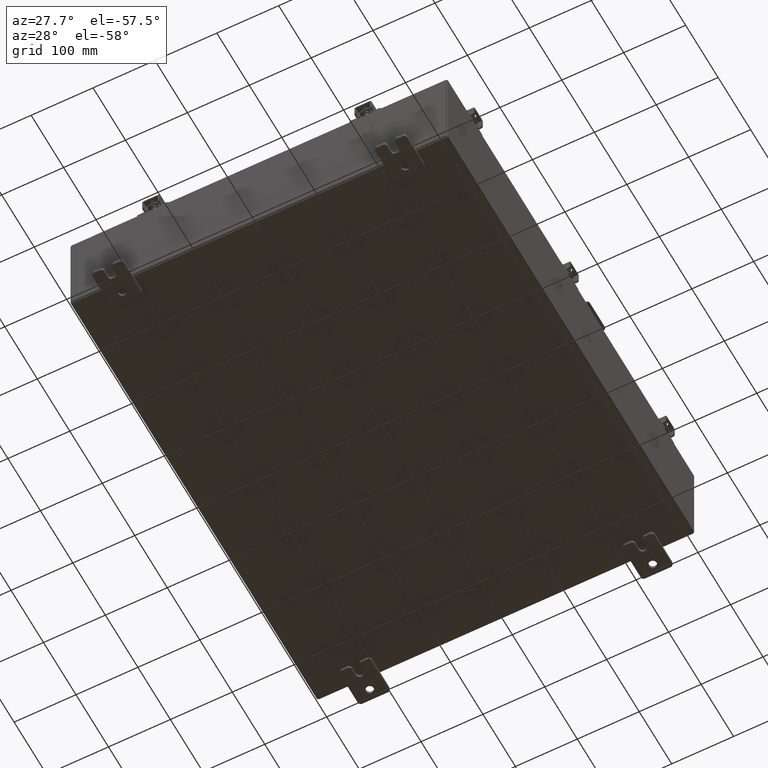
[diagram: clean part render]
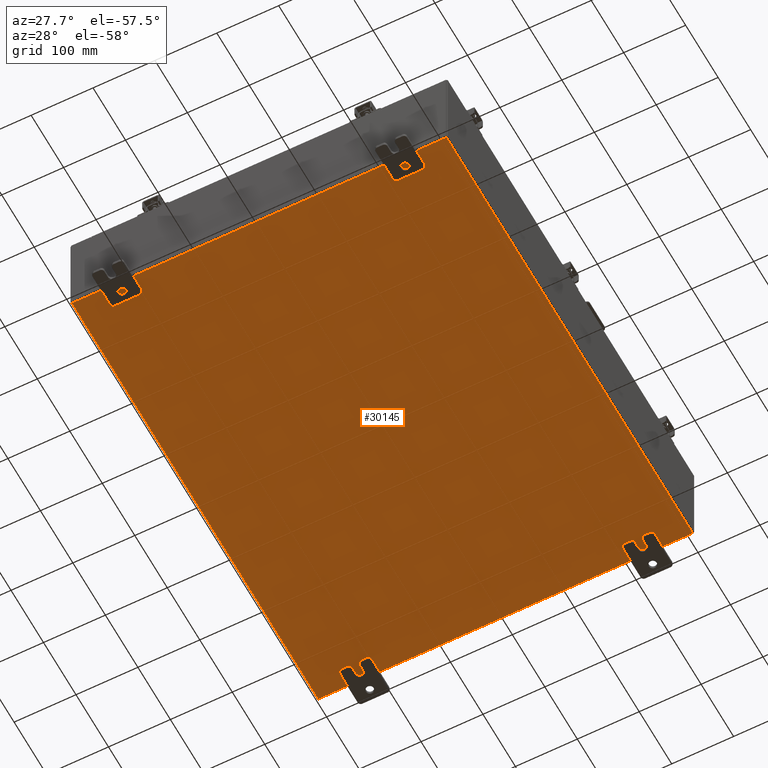
[diagram: same view with one face highlighted and labeled with its STEP entity id]
A machine part, auxiliary view. The second image highlights one B-rep face of the part: STEP entity #30145.
In plain terms, the highlighted planar face has unit normal (0, 0, -1).
Its self-contained STEP definition (entity closure, byte-faithful):
#1163 = CARTESIAN_POINT ( 'NONE',  ( 11.91229999999999700, 14.92530000000000000, -0.07470000000000226500 ) ) ;
#1640 = AXIS2_PLACEMENT_3D ( 'NONE', #20698, #37388, #21628 ) ;
#1777 = DIRECTION ( 'NONE',  ( 1.000000000000000000, 0.0000000000000000000, 0.0000000000000000000 ) ) ;
#6337 = LINE ( 'NONE', #32263, #6439 ) ;
#6439 = VECTOR ( 'NONE', #33549, 39.37007874015748100 ) ;
#6666 = VECTOR ( 'NONE', #8072, 39.37007874015748100 ) ;
#8072 = DIRECTION ( 'NONE',  ( -0.0000000000000000000, -1.000000000000000000, 8.208677865577646300E-017 ) ) ;
#8731 = LINE ( 'NONE', #9877, #12165 ) ;
#9877 = CARTESIAN_POINT ( 'NONE',  ( -12.00000000000000500, 14.92530000000000000, -0.07470000000000000300 ) ) ;
#12165 = VECTOR ( 'NONE', #27285, 39.37007874015748100 ) ;
#12411 = ORIENTED_EDGE ( 'NONE', *, *, #18287, .F. ) ;
#18287 = EDGE_CURVE ( 'NONE', #27255, #30585, #8731, .T. ) ;
#19134 = CARTESIAN_POINT ( 'NONE',  ( 11.91229999999998800, -14.92530000000000000, -0.07470000000000000300 ) ) ;
#19244 = ORIENTED_EDGE ( 'NONE', *, *, #20517, .T. ) ;
#20517 = EDGE_CURVE ( 'NONE', #30253, #30585, #6337, .T. ) ;
#20698 = CARTESIAN_POINT ( 'NONE',  ( 0.0000000000000000000, 0.0000000000000000000, -0.07470000000000000300 ) ) ;
#21628 = DIRECTION ( 'NONE',  ( -1.000000000000000000, 0.0000000000000000000, -0.0000000000000000000 ) ) ;
#22928 = ORIENTED_EDGE ( 'NONE', *, *, #33484, .F. ) ;
#23769 = PLANE ( 'NONE',  #1640 ) ;
#23955 = CARTESIAN_POINT ( 'NONE',  ( -11.91230000000000500, 14.92530000000000000, -0.07470000000000000300 ) ) ;
#25799 = FACE_OUTER_BOUND ( 'NONE', #30304, .T. ) ;
#27255 = VERTEX_POINT ( 'NONE', #1163 ) ;
#27285 = DIRECTION ( 'NONE',  ( -1.000000000000000000, -0.0000000000000000000, -0.0000000000000000000 ) ) ;
#28196 = VECTOR ( 'NONE', #1777, 39.37007874015748100 ) ;
#28284 = VERTEX_POINT ( 'NONE', #19134 ) ;
#29890 = LINE ( 'NONE', #34386, #6666 ) ;
#30145 = ADVANCED_FACE ( 'NONE', ( #25799 ), #23769, .T. ) ;
#30253 = VERTEX_POINT ( 'NONE', #36659 ) ;
#30270 = ORIENTED_EDGE ( 'NONE', *, *, #35042, .T. ) ;
#30304 = EDGE_LOOP ( 'NONE', ( #22928, #19244, #12411, #30270 ) ) ;
#30585 = VERTEX_POINT ( 'NONE', #23955 ) ;
#30885 = CARTESIAN_POINT ( 'NONE',  ( -12.00000000000000500, -14.92530000000000000, -0.07470000000000000300 ) ) ;
#32263 = CARTESIAN_POINT ( 'NONE',  ( -11.91230000000000500, -14.92530000000000000, -0.07469999999999994700 ) ) ;
#33484 = EDGE_CURVE ( 'NONE', #30253, #28284, #36003, .T. ) ;
#33549 = DIRECTION ( 'NONE',  ( -0.0000000000000000000, 1.000000000000000000, -0.0000000000000000000 ) ) ;
#34386 = CARTESIAN_POINT ( 'NONE',  ( 11.91229999999999700, 14.92530000000000000, -0.07470000000000226500 ) ) ;
#35042 = EDGE_CURVE ( 'NONE', #27255, #28284, #29890, .T. ) ;
#36003 = LINE ( 'NONE', #30885, #28196 ) ;
#36659 = CARTESIAN_POINT ( 'NONE',  ( -11.91230000000000500, -14.92530000000000000, -0.07469999999999994700 ) ) ;
#37388 = DIRECTION ( 'NONE',  ( 0.0000000000000000000, 0.0000000000000000000, -1.000000000000000000 ) ) ;